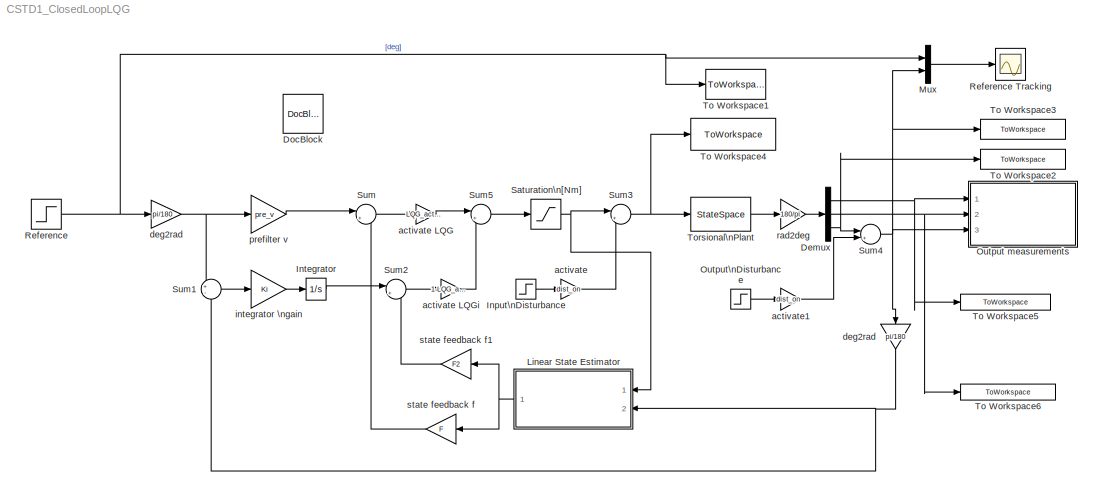
MODEL CSTD1_ClosedLoopLQG
KIND model
BLOCK [Gain]  deg2rad 
  Gain = pi/180
  OutDataTypeStr = Inherit: Inherit via internal rule
  ParamDataTypeStr = Inherit: Inherit via internal rule
  SID = 1
  SaturateOnIntegerOverflow = off
BLOCK [Demux] Demux
  DisplayOption = bar
  Outputs = 3
  Ports = [1, 3]
  SID = 59
BLOCK [Reference] DocBlock  REF=simulink/Model-Wide\nUtilities/DocBlock
  DocumentType = Text
  Ports = []
  SID = 101
  SourceBlock = simulink/Model-Wide\nUtilities/DocBlock
  SourceProductBaseCode = SL
  SourceProductName = Simulink
  SourceType = DocBlock
  UserData = DataTag0
  UserDataPersistent = on
BLOCK [Step] Input\nDisturbance
  After = 0.2
  SID = 97
  SampleTime = 0
  Time = 7
BLOCK [Integrator] Integrator
  Ports = [1, 1]
  SID = 61
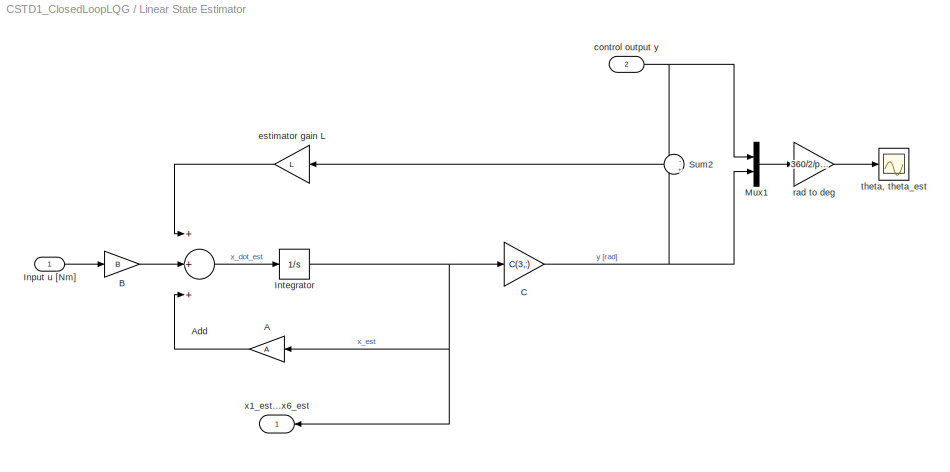
BLOCK [SubSystem] Linear State Estimator
  Ports = [2, 1]
  RequestExecContextInheritance = off
  SID = 12
  Variant = off
BLOCK [Gain] Linear State Estimator/ estimator gain L
  Gain = L
  Multiplication = Matrix(K*u) (u vector)
  OutDataTypeStr = Inherit: Inherit via internal rule
  ParamDataTypeStr = Inherit: Inherit via internal rule
  SID = 15
  SaturateOnIntegerOverflow = off
BLOCK [Gain] Linear State Estimator/A
  Gain = A
  Multiplication = Matrix(K*u) (u vector)
  OutDataTypeStr = Inherit: Inherit via internal rule
  ParamDataTypeStr = Inherit: Inherit via internal rule
  SID = 16
  SaturateOnIntegerOverflow = off
BLOCK [Sum] Linear State Estimator/Add
  InputSameDT = off
  Inputs = +++
  OutDataTypeStr = Inherit: Inherit via internal rule
  Ports = [3, 1]
  SID = 17
  SaturateOnIntegerOverflow = off
BLOCK [Gain] Linear State Estimator/B
  Gain = B
  Multiplication = Matrix(K*u) (u vector)
  OutDataTypeStr = Inherit: Inherit via internal rule
  ParamDataTypeStr = Inherit: Inherit via internal rule
  SID = 18
  SaturateOnIntegerOverflow = off
BLOCK [Gain] Linear State Estimator/C
  Gain = C(3,:)
  Multiplication = Matrix(K*u) (u vector)
  OutDataTypeStr = Inherit: Inherit via internal rule
  ParamDataTypeStr = Inherit: Inherit via internal rule
  SID = 19
  SaturateOnIntegerOverflow = off
BLOCK [Inport] Linear State Estimator/Input u [Nm]
  IconDisplay = Port number
  SID = 13
BLOCK [Integrator] Linear State Estimator/Integrator
  Ports = [1, 1]
  SID = 20
BLOCK [Mux] Linear State Estimator/Mux1
  DisplayOption = bar
  Inputs = 2
  Ports = [2, 1]
  SID = 21
BLOCK [Sum] Linear State Estimator/Sum2
  IconShape = round
  InputSameDT = off
  Inputs = -|+
  OutDataTypeStr = Inherit: Inherit via internal rule
  Ports = [2, 1]
  SID = 22
  SaturateOnIntegerOverflow = off
BLOCK [Inport] Linear State Estimator/control output y
  IconDisplay = Port number
  Port = 2
  SID = 14
BLOCK [Gain] Linear State Estimator/rad to deg
  Gain = 360/2/pi()
  OutDataTypeStr = Inherit: Inherit via internal rule
  ParamDataTypeStr = Inherit: Inherit via internal rule
  SID = 23
  SaturateOnIntegerOverflow = off
BLOCK [Scope] Linear State Estimator/theta, theta_est
  NumInputPorts = 1
  Ports = [1]
  SID = 24
  ScopeSpecificationString = C++SS(StrPVP('Location','[11, 60, 1291, 1008]'),StrPVP('Open','off'),MxPVP('AxesTitles',53,'struct(''axes1'',''%<SignalLabel>'')'),MxPVP('ScopeGraphics',56,'struct(''FigureColor'',''[0.5 0.5 0.5]'',''AxesColor'',''[0 0 0]'',''AxesTickColor'',''[1 1 1]'',''LineColors'',''[1 1 0;1 0 1;0 1 1;1 0 0;0 1 0;0 0 1]'',''LineStyles'',''-|-|-|-|-|-'',''LineWidths'',''[0.5 0.5 0.5 0.5 0.5 0.5]'',''MarkerStyle...<+366ch>
BLOCK [Outport] Linear State Estimator/x1_est...x6_est
  IconDisplay = Port number
  SID = 25
BLOCK [Mux] Mux
  DisplayOption = bar
  Inputs = 2
  Ports = [2, 1]
  SID = 26
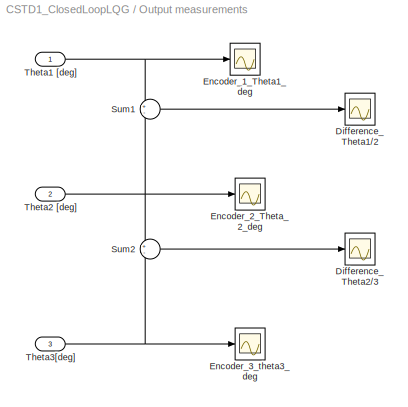
BLOCK [SubSystem] Output measurements
  Ports = [3]
  RequestExecContextInheritance = off
  SID = 27
  Variant = off
BLOCK [Scope] Output measurements/Difference_Theta1//2
  NumInputPorts = 1
  Ports = [1]
  SID = 31
  ScopeSpecificationString = Simulink.scopes.TimeScopeBlockCfg('CurrentConfiguration', extmgr.ConfigurationSet(extmgr.Configuration('Core','General UI',true),extmgr.Configuration('Core','Source UI',true),extmgr.Configuration('Sources','WiredSimulink',true,'DataLoggingSaveFormat','StructureWithTime','DataLoggingDecimation','1','DataLoggingDecimateData',true),extmgr.Configuration('Visuals','Time Domain',true,'SerializedDisplays...<+1580ch>
BLOCK [Scope] Output measurements/Difference_Theta2//3
  NumInputPorts = 1
  Ports = [1]
  SID = 32
  ScopeSpecificationString = Simulink.scopes.TimeScopeBlockCfg('CurrentConfiguration', extmgr.ConfigurationSet(extmgr.Configuration('Core','General UI',true),extmgr.Configuration('Core','Source UI',true),extmgr.Configuration('Sources','WiredSimulink',true,'DataLoggingVariableName','ScopeData1','DataLoggingSaveFormat','StructureWithTime','DataLoggingDecimation','1','DataLoggingDecimateData',true),extmgr.Configuration('Visuals'...<+1620ch>
BLOCK [Scope] Output measurements/Encoder_1_Theta1_deg
  NumInputPorts = 1
  Ports = [1]
  SID = 33
  ScopeSpecificationString = C++SS(StrPVP('Location','[516, 369, 833, 695]'),StrPVP('Open','off'),MxPVP('AxesTitles',53,'struct(''axes1'',''%<SignalLabel>'')'),MxPVP('ScopeGraphics',56,'struct(''FigureColor'',''[0.5 0.5 0.5]'',''AxesColor'',''[0 0 0]'',''AxesTickColor'',''[1 1 1]'',''LineColors'',''[1 1 0;1 0 1;0 1 1;1 0 0;0 1 0;0 0 1]'',''LineStyles'',''-|-|-|-|-|-'',''LineWidths'',''[0.5 0.5 0.5 0.5 0.5 0.5]'',''MarkerStyle...<+340ch>
BLOCK [Scope] Output measurements/Encoder_2_Theta_2_deg
  NumInputPorts = 1
  Ports = [1]
  SID = 34
  ScopeSpecificationString = C++SS(StrPVP('Location','[953, 347, 1268, 596]'),StrPVP('Open','off'),MxPVP('AxesTitles',53,'struct(''axes1'',''%<SignalLabel>'')'),MxPVP('ScopeGraphics',56,'struct(''FigureColor'',''[0.5 0.5 0.5]'',''AxesColor'',''[0 0 0]'',''AxesTickColor'',''[1 1 1]'',''LineColors'',''[1 1 0;1 0 1;0 1 1;1 0 0;0 1 0;0 0 1]'',''LineStyles'',''-|-|-|-|-|-'',''LineWidths'',''[0.5 0.5 0.5 0.5 0.5 0.5]'',''MarkerStyl...<+341ch>
BLOCK [Scope] Output measurements/Encoder_3_theta3_deg
  NumInputPorts = 1
  Ports = [1]
  SID = 35
  ScopeSpecificationString = C++SS(StrPVP('Location','[943, 60, 1267, 299]'),StrPVP('Open','off'),MxPVP('AxesTitles',53,'struct(''axes1'',''%<SignalLabel>'')'),MxPVP('ScopeGraphics',56,'struct(''FigureColor'',''[0.5 0.5 0.5]'',''AxesColor'',''[0 0 0]'',''AxesTickColor'',''[1 1 1]'',''LineColors'',''[1 1 0;1 0 1;0 1 1;1 0 0;0 1 0;0 0 1]'',''LineStyles'',''-|-|-|-|-|-'',''LineWidths'',''[0.5 0.5 0.5 0.5 0.5 0.5]'',''MarkerStyle...<+342ch>
BLOCK [Sum] Output measurements/Sum1
  IconShape = round
  InputSameDT = off
  Inputs = +-
  OutDataTypeStr = Inherit: Inherit via internal rule
  Ports = [2, 1]
  SID = 36
  SaturateOnIntegerOverflow = off
BLOCK [Sum] Output measurements/Sum2
  IconShape = round
  InputSameDT = off
  Inputs = +-
  OutDataTypeStr = Inherit: Inherit via internal rule
  Ports = [2, 1]
  SID = 37
  SaturateOnIntegerOverflow = off
BLOCK [Inport] Output measurements/Theta1 [deg]
  IconDisplay = Port number
  SID = 28
BLOCK [Inport] Output measurements/Theta2 [deg]
  IconDisplay = Port number
  Port = 2
  SID = 29
BLOCK [Inport] Output measurements/Theta3[deg]
  IconDisplay = Port number
  Port = 3
  SID = 30
BLOCK [Step] Output\nDisturbance
  After = 30
  SID = 98
  SampleTime = 0
  Time = 4
BLOCK [Step] Reference
  After = 360
  SID = 96
  SampleTime = 0
  Time = 0
BLOCK [Scope] Reference Tracking
  NumInputPorts = 1
  Ports = [1]
  SID = 11
  ScopeSpecificationString = Simulink.scopes.TimeScopeBlockCfg('CurrentConfiguration', extmgr.ConfigurationSet(extmgr.Configuration('Core','General UI',true),extmgr.Configuration('Core','Source UI',true),extmgr.Configuration('Sources','WiredSimulink',true,'DataLoggingVariableName','ScopeData7','DataLoggingSaveFormat','StructureWithTime','DataLoggingDecimation','1','DataLoggingDecimateData',true),extmgr.Configuration('Visuals'...<+1677ch>
BLOCK [Saturate] Saturation\n[Nm]
  InputPortMap = u0
  LowerLimit = -5*0.387
  Ports = [1, 1]
  SID = 41
  UpperLimit = 5*0.387
BLOCK [Sum] Sum
  IconShape = round
  InputSameDT = off
  Inputs = |++
  OutDataTypeStr = Inherit: Inherit via internal rule
  Ports = [2, 1]
  SID = 42
  SaturateOnIntegerOverflow = off
BLOCK [Sum] Sum1
  IconShape = round
  InputSameDT = off
  Inputs = +-
  OutDataTypeStr = Inherit: Inherit via internal rule
  Ports = [2, 1]
  SID = 62
  SaturateOnIntegerOverflow = off
BLOCK [Sum] Sum2
  IconShape = round
  InputSameDT = off
  Inputs = |++
  OutDataTypeStr = Inherit: Inherit via internal rule
  Ports = [2, 1]
  SID = 68
  SaturateOnIntegerOverflow = off
BLOCK [Sum] Sum3
  IconShape = round
  InputSameDT = off
  Inputs = |++
  OutDataTypeStr = Inherit: Inherit via internal rule
  Ports = [2, 1]
  SID = 92
  SaturateOnIntegerOverflow = off
BLOCK [Sum] Sum4
  IconShape = round
  InputSameDT = off
  Inputs = |++
  OutDataTypeStr = Inherit: Inherit via internal rule
  Ports = [2, 1]
  SID = 94
  SaturateOnIntegerOverflow = off
BLOCK [Sum] Sum5
  IconShape = round
  InputSameDT = off
  Inputs = |++
  OutDataTypeStr = Inherit: Inherit via internal rule
  Ports = [2, 1]
  SID = 104
  SaturateOnIntegerOverflow = off
BLOCK [ToWorkspace] To Workspace1
  MaxDataPoints = inf
  Ports = [1]
  SID = 105
  SampleTime = -1
  VariableName = sim_reft3
BLOCK [ToWorkspace] To Workspace2
  MaxDataPoints = inf
  Ports = [1]
  SID = 109
  SampleTime = -1
  VariableName = sim_Theta3d
BLOCK [ToWorkspace] To Workspace3
  MaxDataPoints = inf
  Ports = [1]
  SID = 40
  SampleTime = -1
  VariableName = sim_Theta3
BLOCK [ToWorkspace] To Workspace4
  MaxDataPoints = inf
  Ports = [1]
  SID = 56
  SampleTime = -1
  VariableName = sim_Torque
BLOCK [ToWorkspace] To Workspace5
  MaxDataPoints = inf
  Ports = [1]
  SID = 107
  SampleTime = -1
  VariableName = sim_Theta1
BLOCK [ToWorkspace] To Workspace6
  MaxDataPoints = inf
  Ports = [1]
  SID = 108
  SampleTime = -1
  VariableName = sim_Theta2
BLOCK [StateSpace] Torsional\nPlant
  A = A
  B = B
  C = C
  D = D
  Ports = [1, 1]
  SID = 43
  X0 = [0 0.1 0 0.2 0 0.2]
BLOCK [Gain] activate
  Gain = dist_on
  OutDataTypeStr = Inherit: Inherit via internal rule
  ParamDataTypeStr = Inherit: Inherit via internal rule
  SID = 99
  SaturateOnIntegerOverflow = off
BLOCK [Gain] activate LQG
  Gain = LQG_activation
  OutDataTypeStr = Inherit: Inherit via internal rule
  ParamDataTypeStr = Inherit: Inherit via internal rule
  SID = 102
  SaturateOnIntegerOverflow = off
BLOCK [Gain] activate LQGi
  Gain = 1-LQG_activation
  OutDataTypeStr = Inherit: Inherit via internal rule
  ParamDataTypeStr = Inherit: Inherit via internal rule
  SID = 103
  SaturateOnIntegerOverflow = off
BLOCK [Gain] activate1
  Gain = dist_on
  OutDataTypeStr = Inherit: Inherit via internal rule
  ParamDataTypeStr = Inherit: Inherit via internal rule
  SID = 100
  SaturateOnIntegerOverflow = off
BLOCK [Gain] deg2rad
  Gain = pi/180
  OutDataTypeStr = Inherit: Inherit via internal rule
  ParamDataTypeStr = Inherit: Inherit via internal rule
  SID = 60
  SaturateOnIntegerOverflow = off
BLOCK [Gain] integrator \ngain
  Gain = Ki
  OutDataTypeStr = Inherit: Inherit via internal rule
  ParamDataTypeStr = Inherit: Inherit via internal rule
  SID = 64
  SaturateOnIntegerOverflow = off
BLOCK [Gain] prefilter v
  Gain = pre_v
  OutDataTypeStr = Inherit: Inherit via internal rule
  ParamDataTypeStr = Inherit: Inherit via internal rule
  SID = 44
  SaturateOnIntegerOverflow = off
BLOCK [Gain] rad2deg
  Gain = 180/pi
  OutDataTypeStr = Inherit: Inherit via internal rule
  ParamDataTypeStr = Inherit: Inherit via internal rule
  SID = 50
  SaturateOnIntegerOverflow = off
BLOCK [Gain] state feedback f
  Gain = F
  Multiplication = Matrix(K*u) (u vector)
  OutDataTypeStr = Inherit: Inherit via internal rule
  ParamDataTypeStr = Inherit: Inherit via internal rule
  SID = 51
  SaturateOnIntegerOverflow = off
BLOCK [Gain] state feedback f1
  Gain = F2
  Multiplication = Matrix(K*u) (u vector)
  OutDataTypeStr = Inherit: Inherit via internal rule
  ParamDataTypeStr = Inherit: Inherit via internal rule
  SID = 67
  SaturateOnIntegerOverflow = off
NET  deg2rad :1 -> Sum1:1, prefilter v:1
NET Demux:1 -> Output measurements:1, To Workspace5:1
NET Demux:2 -> Output measurements:2, To Workspace6:1
NET Demux:3 -> Sum4:1, To Workspace2:1
LINE Input\nDisturbance:1 -> activate:1
LINE Integrator:1 -> Sum2:1
LINE Linear State Estimator/ estimator gain L:1 -> Linear State Estimator/Add:1
LINE Linear State Estimator/A:1 -> Linear State Estimator/Add:3
LINE Linear State Estimator/Add:1 -> Linear State Estimator/Integrator:1
LINE Linear State Estimator/B:1 -> Linear State Estimator/Add:2
NET Linear State Estimator/C:1 -> Linear State Estimator/Mux1:2, Linear State Estimator/Sum2:2
LINE Linear State Estimator/Input u [Nm]:1 -> Linear State Estimator/B:1
NET Linear State Estimator/Integrator:1 -> Linear State Estimator/A:1, Linear State Estimator/C:1, Linear State Estimator/x1_est...x6_est:1
LINE Linear State Estimator/Mux1:1 -> Linear State Estimator/rad to deg:1
LINE Linear State Estimator/Sum2:1 -> Linear State Estimator/ estimator gain L:1
NET Linear State Estimator/control output y:1 -> Linear State Estimator/Mux1:1, Linear State Estimator/Sum2:1
LINE Linear State Estimator/rad to deg:1 -> Linear State Estimator/theta, theta_est:1
NET Linear State Estimator:1 -> state feedback f1:1, state feedback f:1
LINE Mux:1 -> Reference Tracking:1
LINE Output measurements/Sum1:1 -> Output measurements/Difference_Theta1//2:1
LINE Output measurements/Sum2:1 -> Output measurements/Difference_Theta2//3:1
NET Output measurements/Theta1 [deg]:1 -> Output measurements/Encoder_1_Theta1_deg:1, Output measurements/Sum1:1
NET Output measurements/Theta2 [deg]:1 -> Output measurements/Encoder_2_Theta_2_deg:1, Output measurements/Sum1:2, Output measurements/Sum2:1
NET Output measurements/Theta3[deg]:1 -> Output measurements/Encoder_3_theta3_deg:1, Output measurements/Sum2:2
LINE Output\nDisturbance:1 -> activate1:1
NET Reference:1 ->  deg2rad :1, Mux:1, To Workspace1:1
NET Saturation\n[Nm]:1 -> Linear State Estimator:1, Sum3:1
LINE Sum1:1 -> integrator \ngain:1
LINE Sum2:1 -> activate LQGi:1
NET Sum3:1 -> To Workspace4:1, Torsional\nPlant:1
NET Sum4:1 -> Mux:2, Output measurements:3, To Workspace3:1, deg2rad:1
LINE Sum5:1 -> Saturation\n[Nm]:1
LINE Sum:1 -> activate LQG:1
LINE Torsional\nPlant:1 -> rad2deg:1
LINE activate LQG:1 -> Sum5:1
LINE activate LQGi:1 -> Sum5:2
LINE activate1:1 -> Sum4:2
LINE activate:1 -> Sum3:2
NET deg2rad:1 -> Linear State Estimator:2, Sum1:2
LINE integrator \ngain:1 -> Integrator:1
LINE prefilter v:1 -> Sum:1
LINE rad2deg:1 -> Demux:1
LINE state feedback f1:1 -> Sum2:2
LINE state feedback f:1 -> Sum:2
note: NET lines group one-source signal fan-out (src -> all destinations, sorted); 1:1 wires keep LINE
